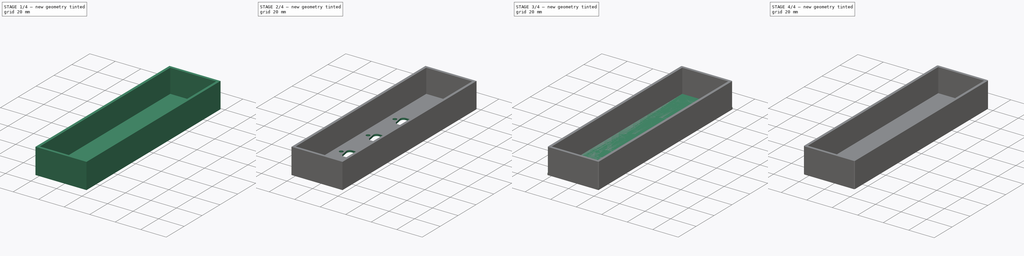
[diagram: build sequence overview — one tinted view per stage of 4, left to right]
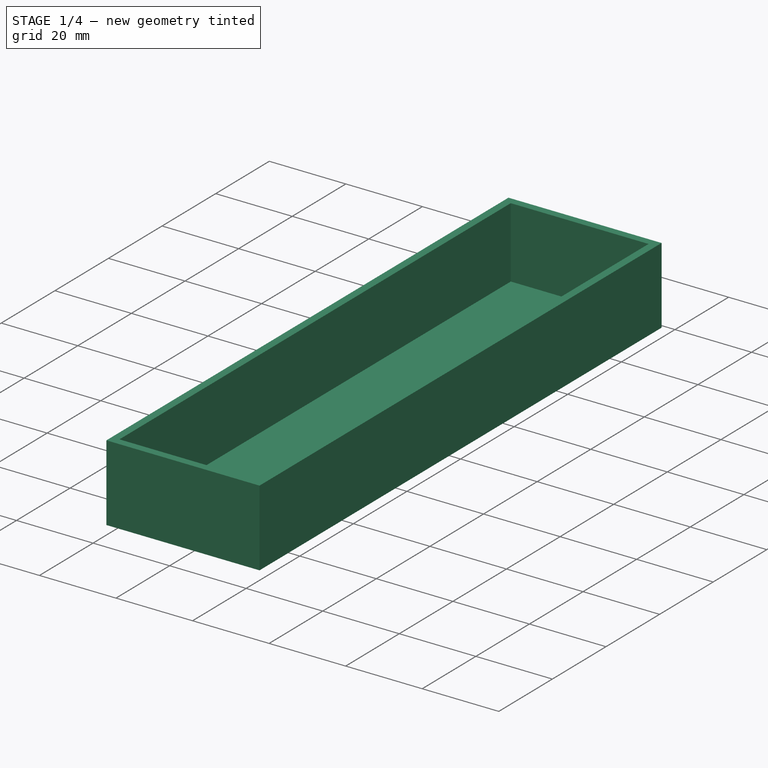
[diagram: stage 1 of 4 — iso view after this stage's code; geometry added in this stage tinted green]
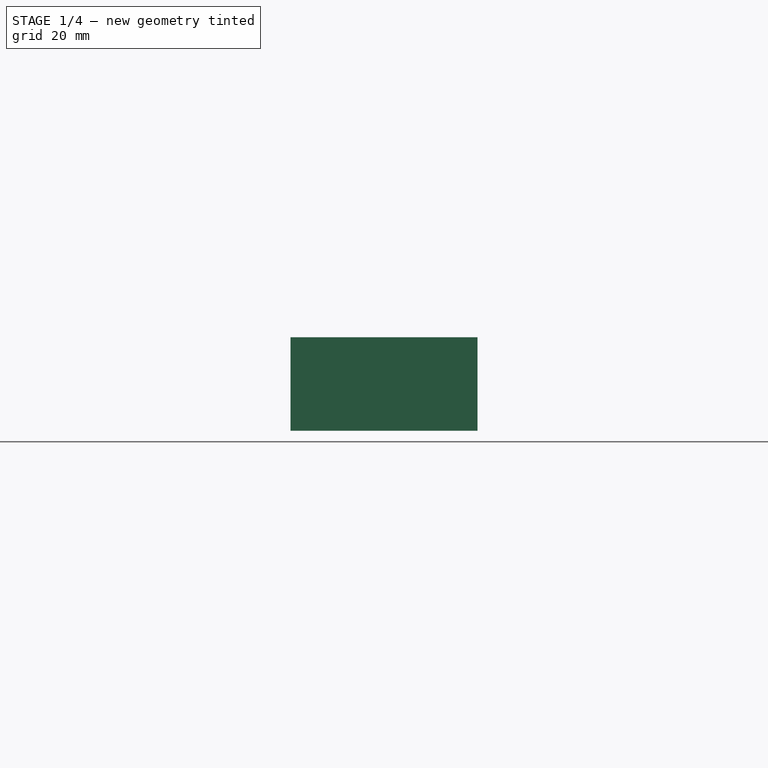
[diagram: stage 1 of 4 — front view after this stage's code; geometry added in this stage tinted green]
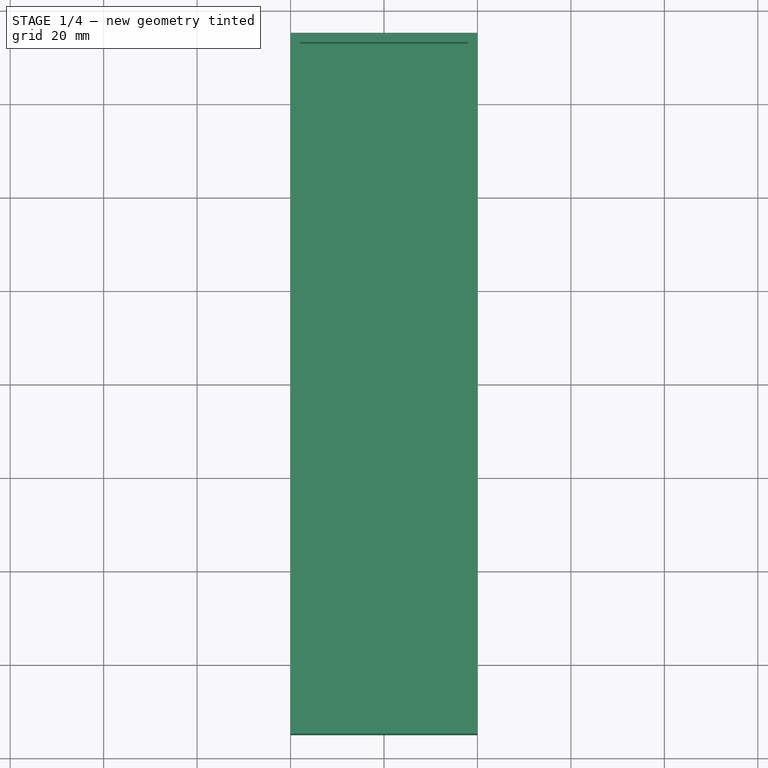
[diagram: stage 1 of 4 — top view after this stage's code; geometry added in this stage tinted green]
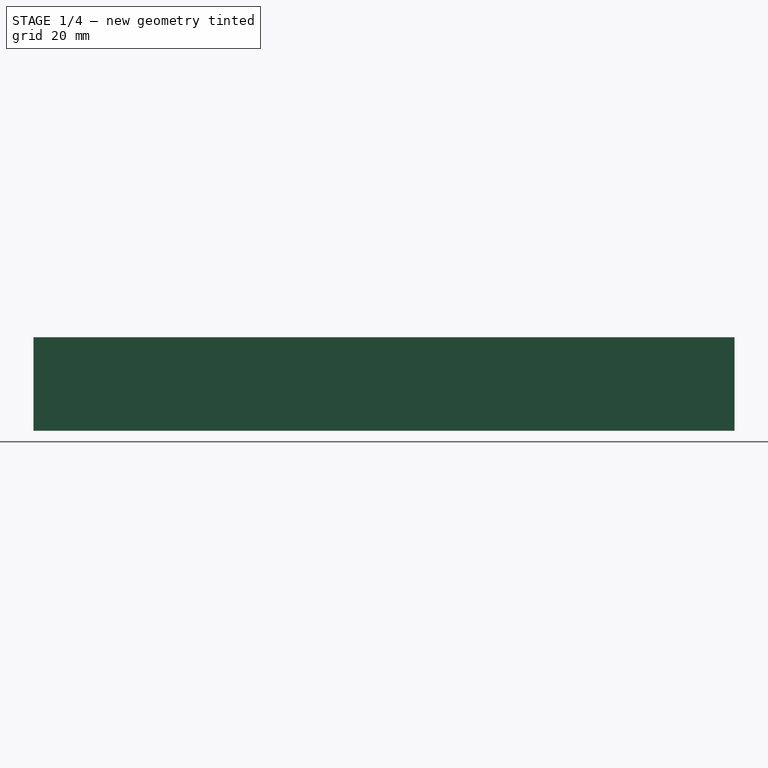
[diagram: stage 1 of 4 — right view after this stage's code; geometry added in this stage tinted green]
FCSTD DOCUMENT  (FreeCAD 0.19R24291 (Git))
Label: db9splitter
Comment: https://edac.net/products/dsub-panel-cutouts/182
License: All rights reserved
LicenseURL: http://en.wikipedia.org/wiki/All_rights_reserved
objects: Sketcher::SketchObject×6, PartDesign::Pad×4, PartDesign::Pocket×2, PartDesign::Chamfer×2, PartDesign::Body×2, PartDesign::LinearPattern×1
note: 25 computed .brp shape members not serialized (recipe doc carries the construction recipe); baked Part::Feature solids carry a one-line shape summary decoded from their .brp

FEATURE [Sketcher::SketchObject] Sketch002
  FullyConstrained = true
  MapMode = 5
  Support = -> [XY_Plane]
  sketch-geometry (13):
    g0: LineSegment StartX=-10.1972 StartY=2.39129 StartZ=0 EndX=-9.20216 EndY=-3.26872 EndZ=0
    g1: LineSegment StartX=10.1972 StartY=2.39129 StartZ=0 EndX=9.20218 EndY=-3.26872 EndZ=0
    g2: LineSegment StartX=-7.73 StartY=5.33 StartZ=0 EndX=7.73 EndY=5.33 EndZ=0
    g3: LineSegment StartX=-6.735 StartY=-5.34 StartZ=0 EndX=6.735 EndY=-5.34 EndZ=0
    g4: ArcOfCircle CenterX=-7.72999 CenterY=2.825 CenterZ=0 NormalX=0 NormalY=0 NormalZ=1 AngleXU=0 Radius=2.505 StartAngle=1.5708 EndAngle=3.31561
    g5: ArcOfCircle CenterX=7.73001 CenterY=2.825 CenterZ=0 NormalX=0 NormalY=0 NormalZ=1 AngleXU=0 Radius=2.505 StartAngle=6.10917 EndAngle=7.85399
    g6: ArcOfCircle CenterX=6.73501 CenterY=-2.835 CenterZ=0 NormalX=0 NormalY=0 NormalZ=1 AngleXU=0 Radius=2.505 StartAngle=4.71238 EndAngle=6.10917
    g7: ArcOfCircle CenterX=-6.73499 CenterY=-2.835 CenterZ=0 NormalX=0 NormalY=0 NormalZ=1 AngleXU=0 Radius=2.505 StartAngle=3.31561 EndAngle=4.71238
    g8: Circle CenterX=-12.495 CenterY=0 CenterZ=0 NormalX=0 NormalY=0 NormalZ=1 AngleXU=0 Radius=1.525
    g9: Circle CenterX=12.495 CenterY=0 CenterZ=0 NormalX=0 NormalY=0 NormalZ=1 AngleXU=0 Radius=1.525
    g10: GeomPoint X=0 Y=5.33 Z=0
    g11: LineSegment StartX=0 StartY=5.33 StartZ=0 EndX=0 EndY=0 EndZ=0
    g12: LineSegment StartX=0 StartY=0 StartZ=0 EndX=0 EndY=-5.34 EndZ=0
  constraints (38):
    c: Horizontal(g2)
    c: Horizontal(g3)
    c: Coincident(g4,g2)
    c: Coincident(g5,g2)
    c: Coincident(g6,g1)
    c: Coincident(g7,g0)
    c: Equal(g5,g4)
    c: Equal(g4,g7)
    c: Equal(g7,g6)
    c: Tangent(g2,g5)
    c: Tangent(g2,g4)
    c: Coincident(g4,g0)
    c: Coincident(g3,g7)
    c: Coincident(g3,g6)
    c: Coincident(g5,g1)
    c: Tangent(g4,g0)
    c: Tangent(g0,g7)
    c: Tangent(g7,g3)
    c: Tangent(g3,g6)
    c: Tangent(g6,g1)
    c: Tangent(g1,g5)
    c: DistanceY(g3,g2) = 10.67
    c: DistanceY(g7,g4) = 5.66
    c: Equal(g8,g9)
    c: Horizontal(g8,g9)
    c: DistanceY(g9,g2) = 5.33
    c: Symmetric(g2,g2,g10)
    c: Coincident(g11,g10)
    c: Vertical(g11)
    c: Symmetric(g8,g9,g11)
    c: DistanceX(g8,g9) = 24.99
    c: Coincident(g12,g11)
    c: Vertical(g12)
    c: Symmetric(g3,g3,g12)
    c: Diameter(g9) = 3.05
    c: DistanceX(g3,g3) = 13.47
    c: DistanceX(g2,g2) = 15.46
    c: Coincident(g-1,g11)
FEATURE [Sketcher::SketchObject] Sketch
  FullyConstrained = true
  MapMode = 5
  Support = -> [XY_Plane]
  sketch-geometry (5):
    g0: LineSegment StartX=20 StartY=-15 StartZ=0 EndX=-20 EndY=-15 EndZ=0
    g1: LineSegment StartX=-20 StartY=-15 StartZ=0 EndX=-20 EndY=135 EndZ=0
    g2: LineSegment StartX=-20 StartY=135 StartZ=0 EndX=20 EndY=135 EndZ=0
    g3: LineSegment StartX=20 StartY=135 StartZ=0 EndX=20 EndY=-15 EndZ=0
    g4: GeomPoint X=0 Y=-15 Z=0
  constraints (13):
    c: Coincident(g0,g1)
    c: Coincident(g1,g2)
    c: Coincident(g2,g3)
    c: Coincident(g3,g0)
    c: Horizontal(g0)
    c: Horizontal(g2)
    c: Vertical(g1)
    c: Vertical(g3)
    c: PointOnObject(g4,g-2)
    c: Symmetric(g0,g0,g4)
    c: DistanceY(g4,g-1) = 15
    c: DistanceY(g3,g3) = 150
    c: DistanceX(g0,g0) = 40
FEATURE [PartDesign::Pad] Pad
  Direction = (1,1,1)
  Length = 1.5
  Length2 = 100
  Profile = -> Sketch
  Type = 0
FEATURE [Sketcher::SketchObject] Sketch003
  FullyConstrained = true
  MapMode = 5
  Support = -> [XY_Plane]
  sketch-geometry (12):
    g0: LineSegment StartX=20 StartY=-15 StartZ=0 EndX=-20 EndY=-15 EndZ=0
    g1: LineSegment StartX=-20 StartY=-15 StartZ=0 EndX=-20 EndY=135 EndZ=0
    g2: LineSegment StartX=-20 StartY=135 StartZ=0 EndX=20 EndY=135 EndZ=0
    g3: LineSegment StartX=20 StartY=135 StartZ=0 EndX=20 EndY=-15 EndZ=0
    g4: LineSegment StartX=18 StartY=-13 StartZ=0 EndX=-18 EndY=-13 EndZ=0
    g5: LineSegment StartX=-18 StartY=-13 StartZ=0 EndX=-18 EndY=133 EndZ=0
    g6: LineSegment StartX=-18 StartY=133 StartZ=0 EndX=18 EndY=133 EndZ=0
    g7: LineSegment StartX=18 StartY=133 StartZ=0 EndX=18 EndY=-13 EndZ=0
    g8: GeomPoint X=0 Y=-13 Z=0
    g9: GeomPoint X=0 Y=-15 Z=0
    g10: LineSegment StartX=18 StartY=-13 StartZ=0 EndX=20 EndY=-15 EndZ=0
    g11: LineSegment StartX=18 StartY=133 StartZ=0 EndX=20 EndY=135 EndZ=0
  constraints (30):
    c: Coincident(g0,g1)
    c: Coincident(g1,g2)
    c: Coincident(g2,g3)
    c: Coincident(g3,g0)
    c: Horizontal(g0)
    c: Horizontal(g2)
    c: Vertical(g1)
    c: Vertical(g3)
    c: Coincident(g4,g5)
    c: Coincident(g5,g6)
    c: Coincident(g6,g7)
    c: Coincident(g7,g4)
    c: Horizontal(g4)
    c: Horizontal(g6)
    c: Vertical(g5)
    c: Vertical(g7)
    c: PointOnObject(g8,g-2)
    c: PointOnObject(g9,g-2)
    c: Symmetric(g4,g4,g8)
    c: Symmetric(g0,g0,g9)
    c: DistanceY(g0,g4) = 2
    c: DistanceX(g4,g0) = 2
    c: Coincident(g10,g4)
    c: Coincident(g10,g0)
    c: DistanceY(g0,g-1) = 15
    c: DistanceX(g0,g0) = 40
    c: Coincident(g11,g6)
    c: Coincident(g11,g2)
    c: Equal(g11,g10)
    c: DistanceY(g3,g3) = 150
FEATURE [PartDesign::Pad] Pad001
  BaseFeature = -> Pad
  Direction = (1,1,1)
  Length = 20
  Length2 = 100
  Profile = -> Sketch003
  Type = 0
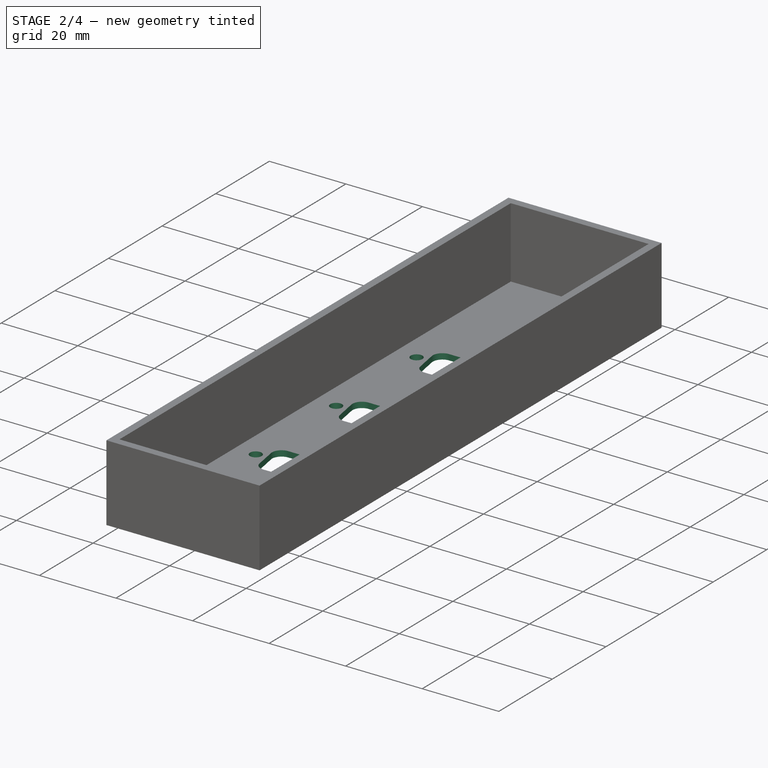
[diagram: stage 2 of 4 — iso view after this stage's code; geometry added in this stage tinted green]
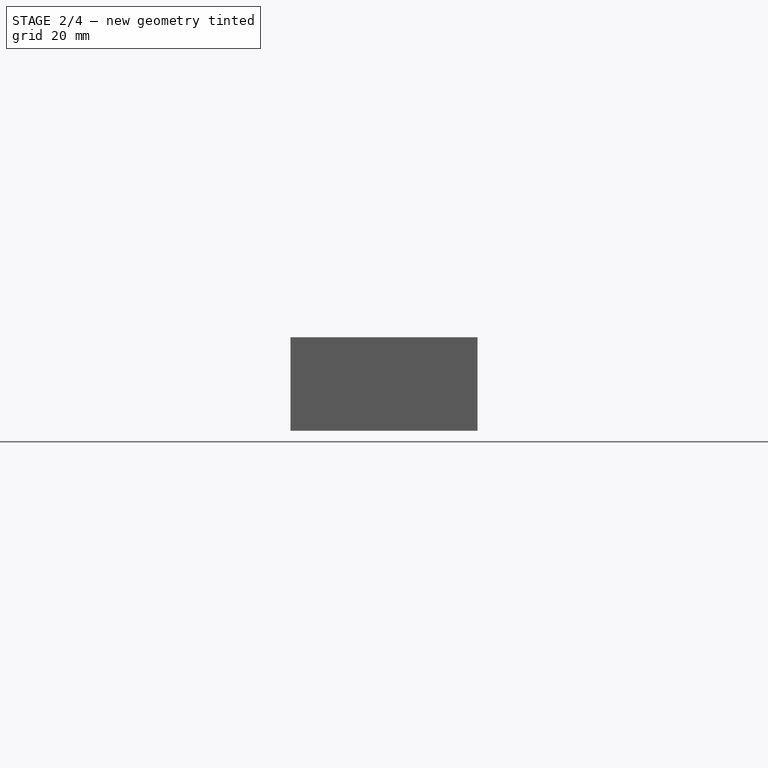
[diagram: stage 2 of 4 — front view after this stage's code; geometry added in this stage tinted green]
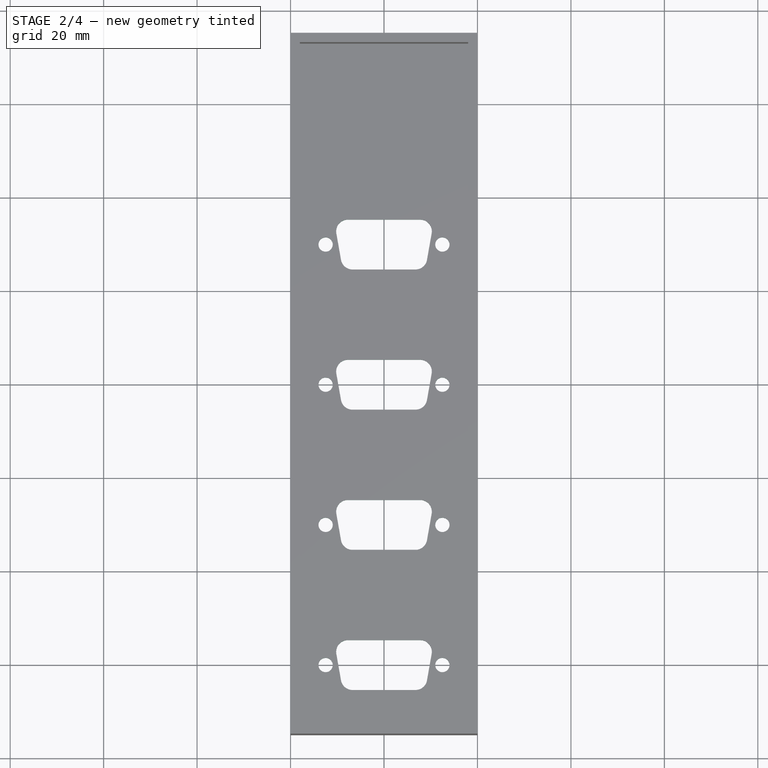
[diagram: stage 2 of 4 — top view after this stage's code; geometry added in this stage tinted green]
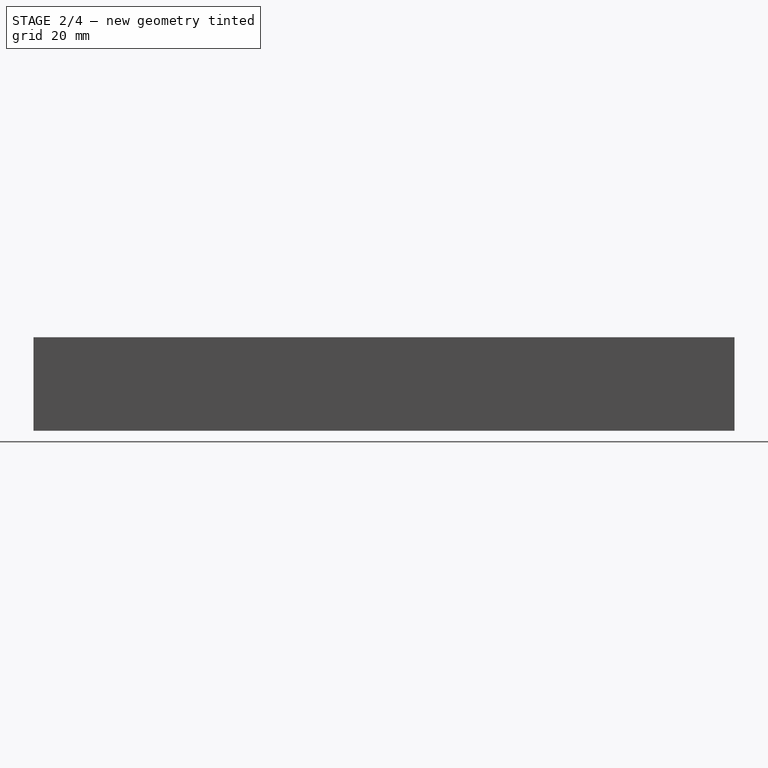
[diagram: stage 2 of 4 — right view after this stage's code; geometry added in this stage tinted green]
FEATURE [PartDesign::Pocket] Pocket
  BaseFeature = -> Pad001
  Length = 2
  Length2 = 100
  Profile = -> Sketch002
  Reversed = true
  Type = 0
FEATURE [PartDesign::LinearPattern] LinearPattern
  BaseFeature = -> Pocket
  Direction = -> Y_Axis
  Length = 90
  Occurrences = 4
  Originals = -> [Pocket]
  Refine = true
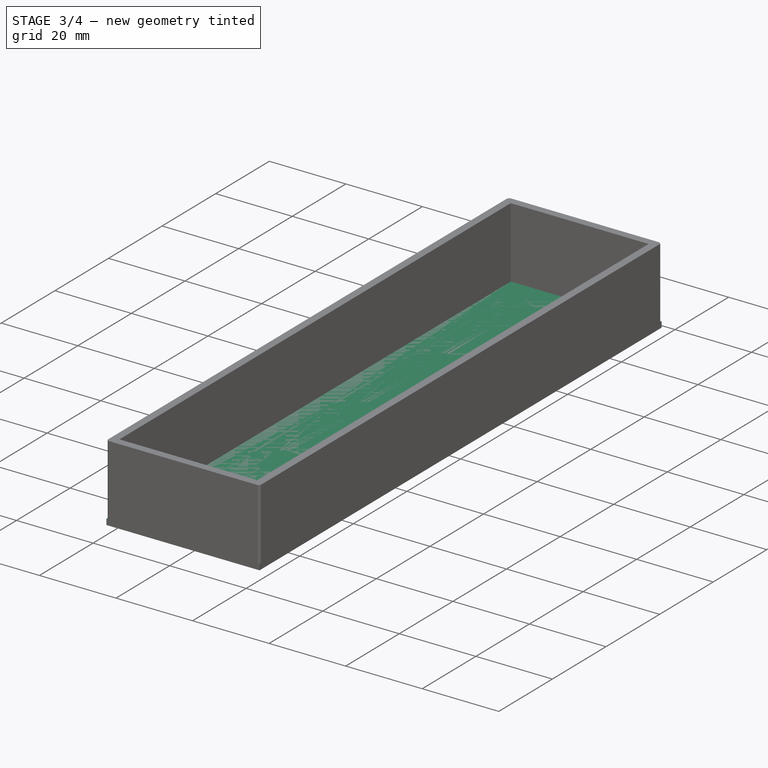
[diagram: stage 3 of 4 — iso view after this stage's code; geometry added in this stage tinted green]
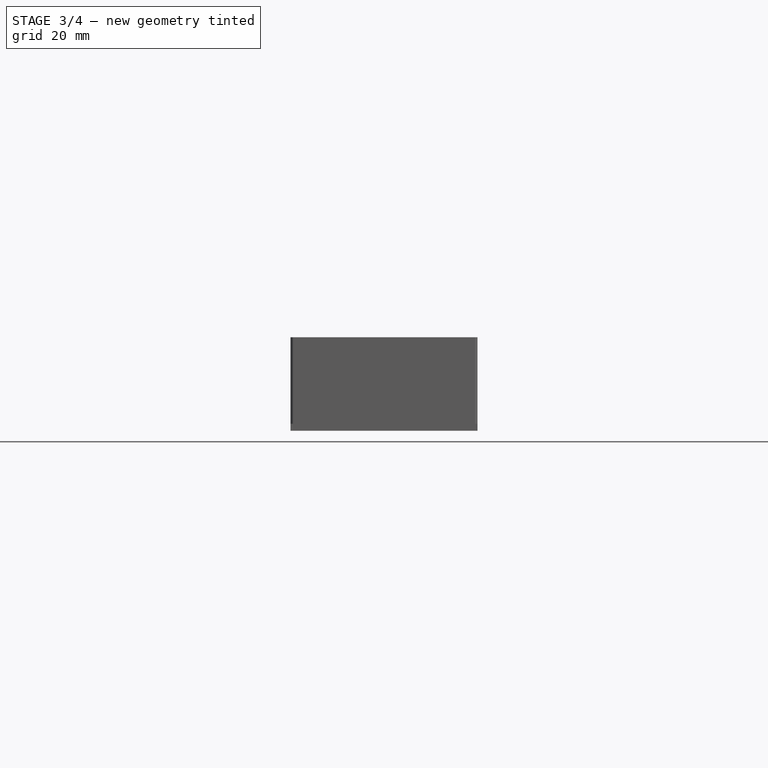
[diagram: stage 3 of 4 — front view after this stage's code; geometry added in this stage tinted green]
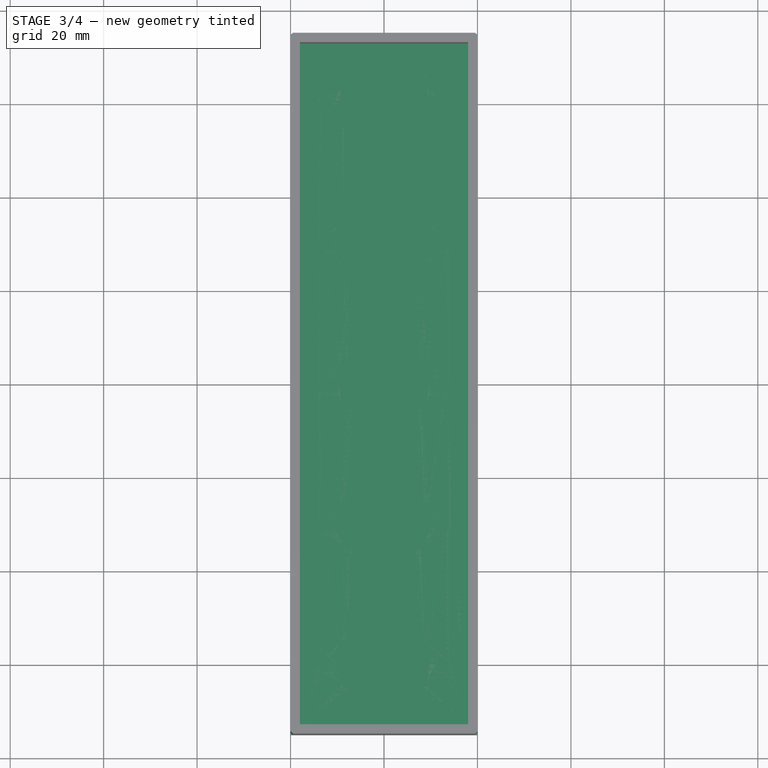
[diagram: stage 3 of 4 — top view after this stage's code; geometry added in this stage tinted green]
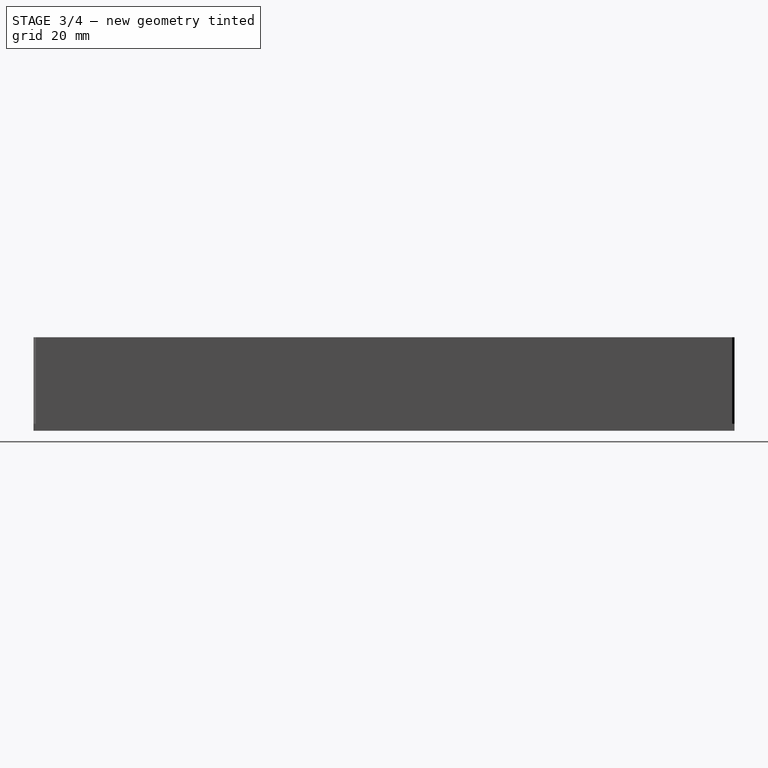
[diagram: stage 3 of 4 — right view after this stage's code; geometry added in this stage tinted green]
FEATURE [Sketcher::SketchObject] Sketch004
  FullyConstrained = true
  MapMode = 5
  Support = -> [XY_Plane001]
  sketch-geometry (5):
    g0: LineSegment StartX=20 StartY=-15 StartZ=0 EndX=-20 EndY=-15 EndZ=0
    g1: LineSegment StartX=-20 StartY=-15 StartZ=0 EndX=-20 EndY=135 EndZ=0
    g2: LineSegment StartX=-20 StartY=135 StartZ=0 EndX=20 EndY=135 EndZ=0
    g3: LineSegment StartX=20 StartY=135 StartZ=0 EndX=20 EndY=-15 EndZ=0
    g4: GeomPoint X=0 Y=-15 Z=0
  constraints (13):
    c: Coincident(g0,g1)
    c: Coincident(g1,g2)
    c: Coincident(g2,g3)
    c: Coincident(g3,g0)
    c: Horizontal(g0)
    c: Horizontal(g2)
    c: Vertical(g1)
    c: Vertical(g3)
    c: PointOnObject(g4,g-2)
    c: Symmetric(g0,g0,g4)
    c: DistanceX(g0,g0) = 40
    c: DistanceY(g3,g3) = 150
    c: DistanceY(g4,g-1) = 15
FEATURE [PartDesign::Pad] Pad002
  Direction = (1,1,1)
  Length = 1.5
  Length2 = 100
  Profile = -> Sketch004
  Type = 0
FEATURE [PartDesign::Body] Body001
  Group = -> [Sketch004,Pad002,Sketch005,Pad003,Chamfer001]
  Origin = -> Origin001
  Placement = pos=(0,0,20) rot=(0,0,1;0rad)
  Tip = -> Chamfer001
FEATURE [Sketcher::SketchObject] Sketch006
  FullyConstrained = true
  MapMode = 5
  Support = -> [XY_Plane]
  sketch-geometry (13):
    g0: LineSegment StartX=-9.20217 StartY=123.259 StartZ=0 EndX=-10.1971 EndY=117.599 EndZ=0
    g1: LineSegment StartX=9.20217 StartY=123.259 StartZ=0 EndX=10.1971 EndY=117.599 EndZ=0
    g2: LineSegment StartX=-6.735 StartY=125.33 StartZ=0 EndX=6.735 EndY=125.33 EndZ=0
    g3: LineSegment StartX=-7.73 StartY=114.66 StartZ=0 EndX=7.73 EndY=114.66 EndZ=0
    g4: ArcOfCircle CenterX=-6.735 CenterY=122.825 CenterZ=0 NormalX=0 NormalY=0 NormalZ=1 AngleXU=0 Radius=2.505 StartAngle=1.5708 EndAngle=2.96758
    g5: ArcOfCircle CenterX=6.735 CenterY=122.825 CenterZ=0 NormalX=0 NormalY=0 NormalZ=1 AngleXU=0 Radius=2.505 StartAngle=0.174009 EndAngle=1.5708
    g6: ArcOfCircle CenterX=7.72998 CenterY=117.165 CenterZ=0 NormalX=0 NormalY=0 NormalZ=1 AngleXU=0 Radius=2.505 StartAngle=4.7124 EndAngle=6.4572
    g7: ArcOfCircle CenterX=-7.72998 CenterY=117.165 CenterZ=0 NormalX=0 NormalY=0 NormalZ=1 AngleXU=0 Radius=2.505 StartAngle=2.96758 EndAngle=4.71238
    g8: Circle CenterX=-12.495 CenterY=120 CenterZ=0 NormalX=0 NormalY=0 NormalZ=1 AngleXU=0 Radius=1.525
    g9: Circle CenterX=12.495 CenterY=120 CenterZ=0 NormalX=0 NormalY=0 NormalZ=1 AngleXU=0 Radius=1.525
    g10: GeomPoint X=0 Y=125.33 Z=0
    g11: LineSegment StartX=0 StartY=125.33 StartZ=0 EndX=0 EndY=120 EndZ=0
    g12: LineSegment StartX=0 StartY=120 StartZ=0 EndX=0 EndY=114.66 EndZ=0
  constraints (39):
    c: Horizontal(g2)
    c: Horizontal(g3)
    c: Coincident(g4,g2)
    c: Coincident(g5,g2)
    c: Coincident(g6,g1)
    c: Coincident(g7,g0)
    c: Equal(g5,g4)
    c: Equal(g4,g7)
    c: Equal(g7,g6)
    c: Tangent(g2,g5)
    c: Tangent(g2,g4)
    c: Coincident(g4,g0)
    c: Coincident(g3,g7)
    c: Coincident(g3,g6)
    c: Coincident(g5,g1)
    c: Tangent(g4,g0)
    c: Tangent(g0,g7)
    c: Tangent(g7,g3)
    c: Tangent(g3,g6)
    c: Tangent(g6,g1)
    c: Tangent(g1,g5)
    c: DistanceY(g3,g2) = 10.67
    c: DistanceY(g7,g4) = 5.66
    c: Equal(g8,g9)
    c: Horizontal(g8,g9)
    c: DistanceY(g9,g2) = 5.33
    c: Symmetric(g2,g2,g10)
    c: Coincident(g11,g10)
    c: Vertical(g11)
    c: Symmetric(g8,g9,g11)
    c: DistanceX(g8,g9) = 24.99
    c: Vertical(g12)
    c: Symmetric(g3,g3,g12)
    c: Diameter(g9) = 3.05
    c: DistanceX(g3,g3) = 15.46
    c: DistanceX(g2,g2) = 13.47
    c: Coincident(g11,g12)
    c: PointOnObject(g11,g-2)
    c: DistanceY(g-1,g11) = 120
FEATURE [PartDesign::Pocket] Pocket001
  BaseFeature = -> LinearPattern
  Length = 5
  Length2 = 100
  Profile = -> Sketch006
  Reversed = true
  Type = 0
FEATURE [PartDesign::Chamfer] Chamfer
  Angle = 45
  Base = -> Pocket001 [Edge13,Edge11,Edge10,Edge9,Edge16,Edge14,Edge15,Edge12]
  BaseFeature = -> Pocket001
  ChamferType = 0
  FlipDirection = false
  Size = 0.5
  Size2 = 1
  SupportTransform = false
FEATURE [PartDesign::Body] Body
  Group = -> [Sketch002,Sketch,Pad,Sketch003,Pad001,Pocket,LinearPattern,Sketch006,Pocket001,Chamfer]
  Origin = -> Origin
  Tip = -> Chamfer
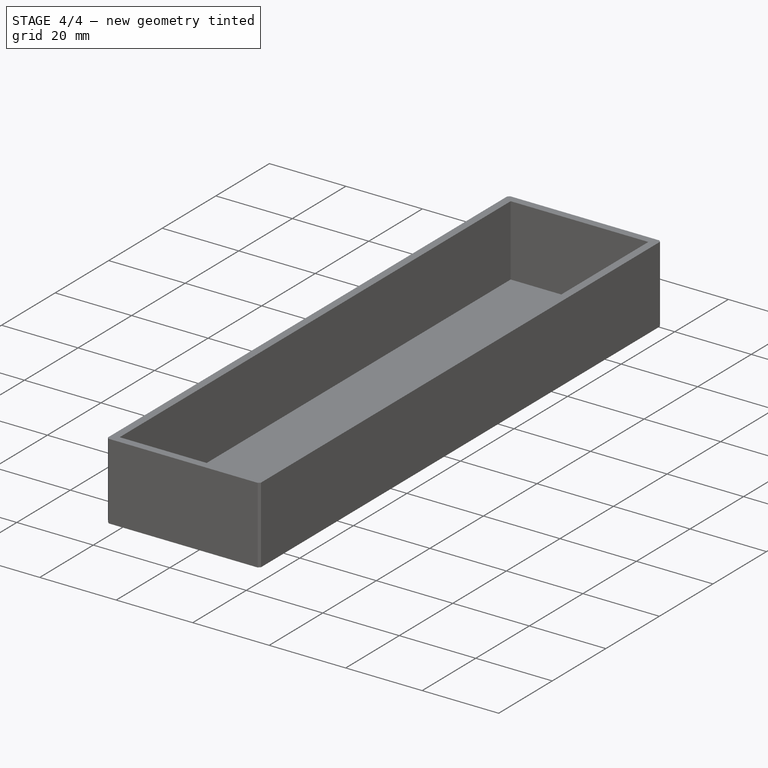
[diagram: stage 4 of 4 — iso view after this stage's code; geometry added in this stage tinted green]
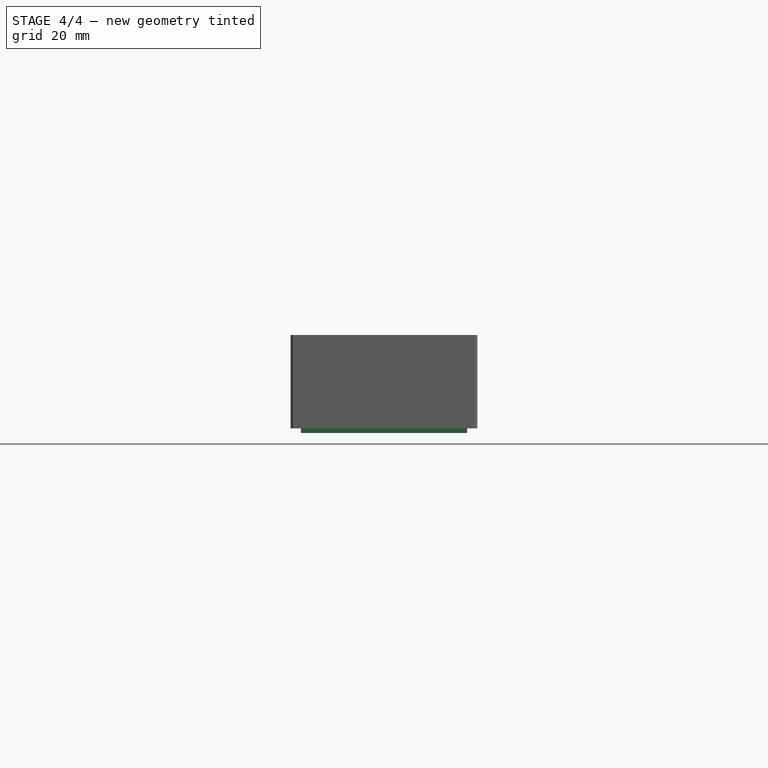
[diagram: stage 4 of 4 — front view after this stage's code; geometry added in this stage tinted green]
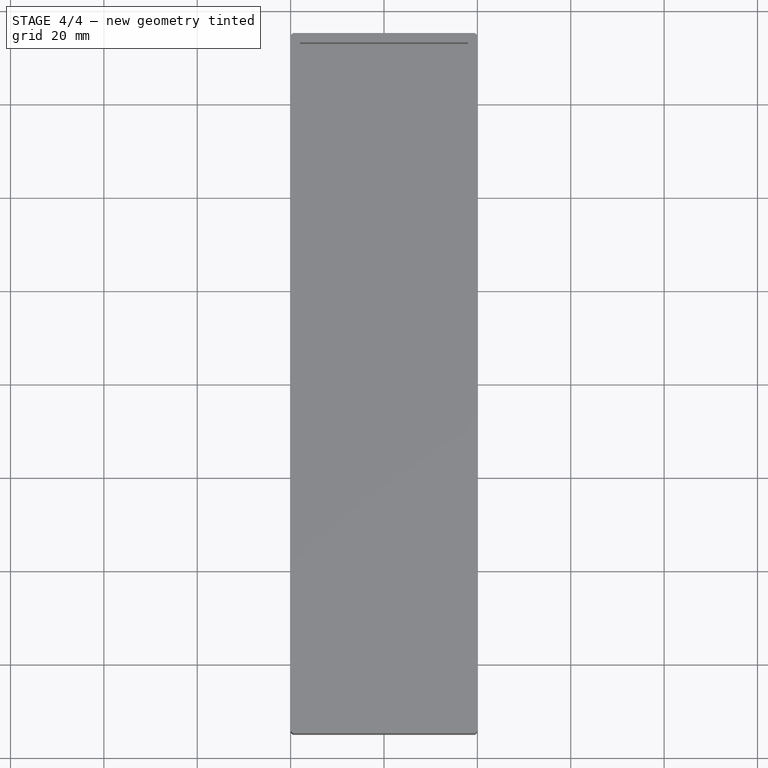
[diagram: stage 4 of 4 — top view after this stage's code; geometry added in this stage tinted green]
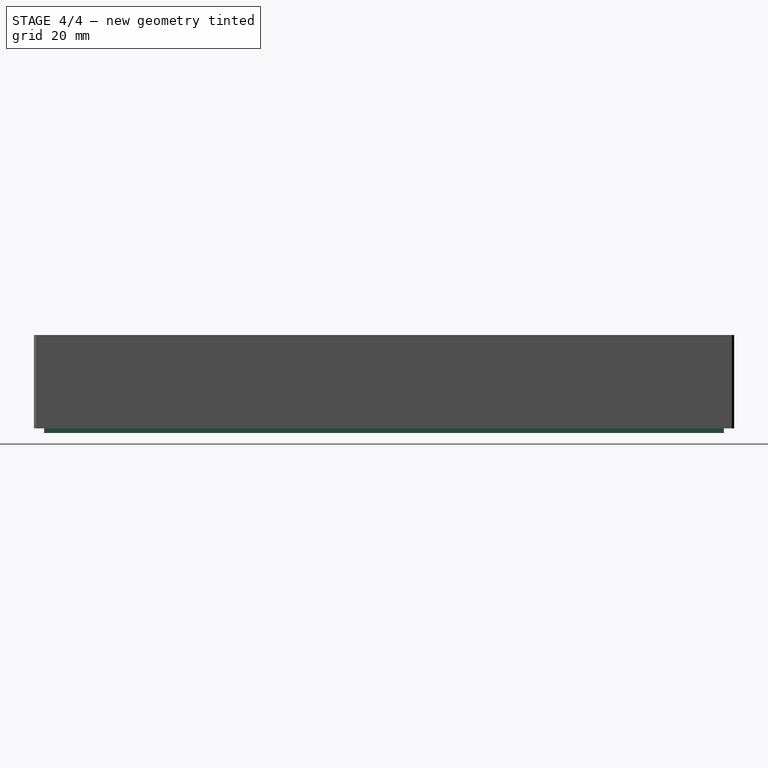
[diagram: stage 4 of 4 — right view after this stage's code; geometry added in this stage tinted green]
FEATURE [Sketcher::SketchObject] Sketch005
  FullyConstrained = true
  MapMode = 5
  Support = -> [XY_Plane001]
  sketch-geometry (5):
    g0: LineSegment StartX=-17.8 StartY=132.8 StartZ=0 EndX=17.8 EndY=132.8 EndZ=0
    g1: LineSegment StartX=17.8 StartY=132.8 StartZ=0 EndX=17.8 EndY=-12.8 EndZ=0
    g2: LineSegment StartX=17.8 StartY=-12.8 StartZ=0 EndX=-17.8 EndY=-12.8 EndZ=0
    g3: LineSegment StartX=-17.8 StartY=-12.8 StartZ=0 EndX=-17.8 EndY=132.8 EndZ=0
    g4: GeomPoint X=0 Y=-12.8 Z=0
  constraints (13):
    c: Coincident(g0,g1)
    c: Coincident(g1,g2)
    c: Coincident(g2,g3)
    c: Coincident(g3,g0)
    c: Horizontal(g0)
    c: Horizontal(g2)
    c: Vertical(g1)
    c: Vertical(g3)
    c: PointOnObject(g4,g-2)
    c: DistanceX(g2,g2) = 35.6
    c: DistanceY(g1,g1) = 145.6
    c: DistanceY(g4,g-1) = 12.8
    c: Symmetric(g1,g2,g4)
FEATURE [PartDesign::Pad] Pad003
  BaseFeature = -> Pad002
  Direction = (1,1,1)
  Length = 1
  Length2 = 100
  Profile = -> Sketch005
  Reversed = true
  Type = 0
FEATURE [PartDesign::Chamfer] Chamfer001
  Angle = 45
  Base = -> Pad003 [Edge2,Edge10,Edge4,Edge8,Edge16,Edge5,Edge7,Edge1]
  BaseFeature = -> Pad003
  ChamferType = 0
  FlipDirection = false
  Size = 0.53
  Size2 = 1
  SupportTransform = false
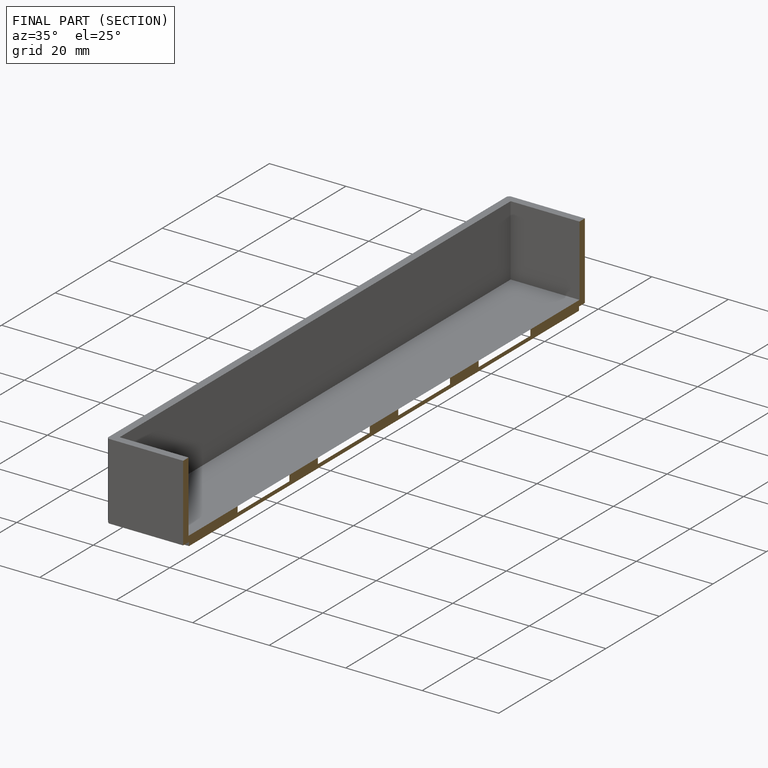
[diagram: finished part — half-section view (interior)]
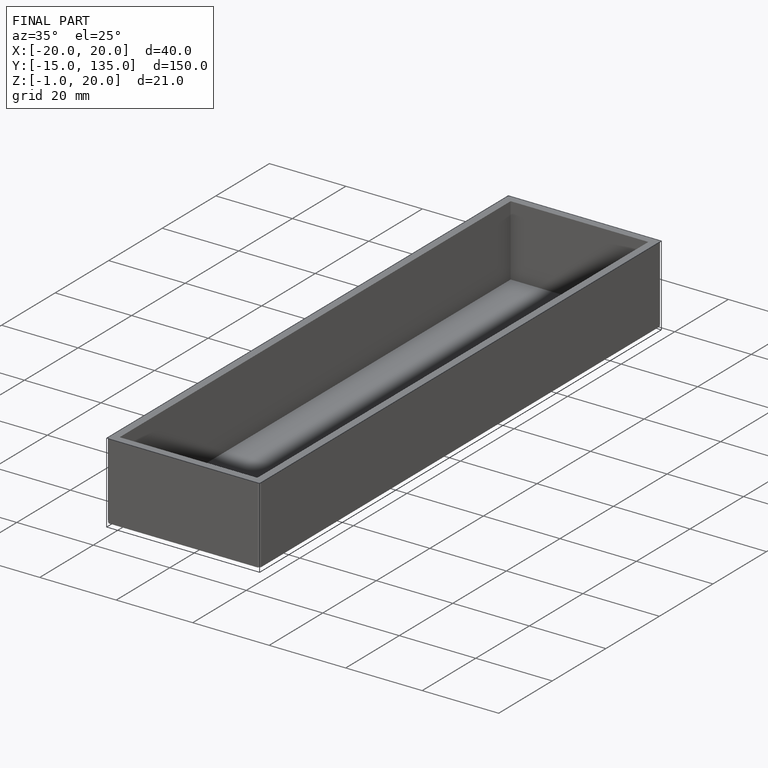
[diagram: finished part — iso view with bounding-box wireframe]
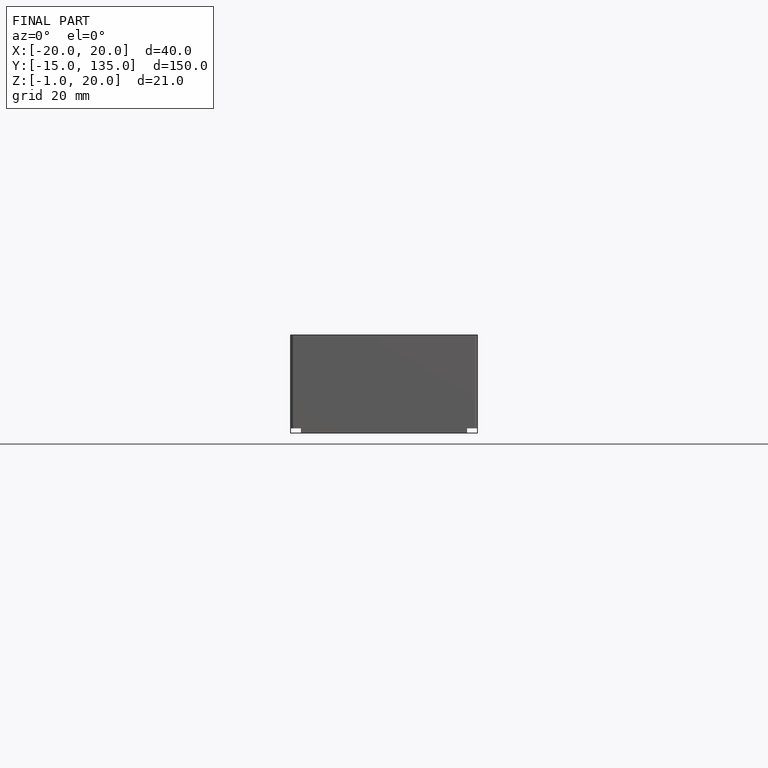
[diagram: finished part — front view with bounding-box wireframe]
